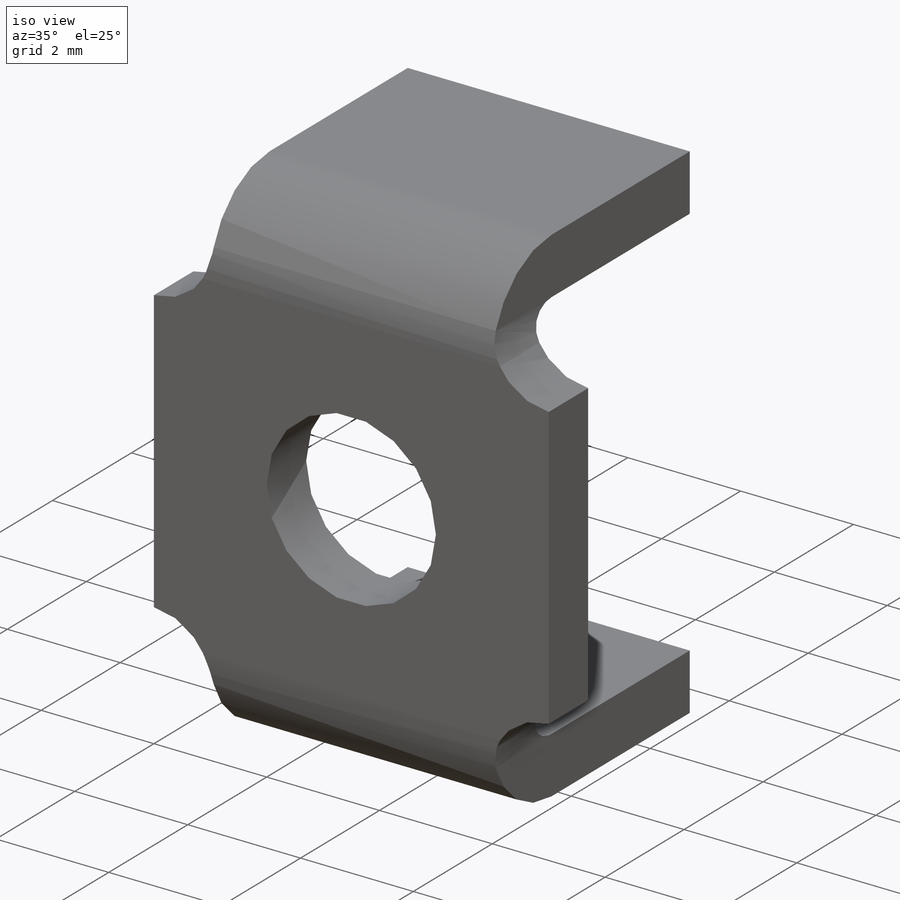
[diagram: iso view]
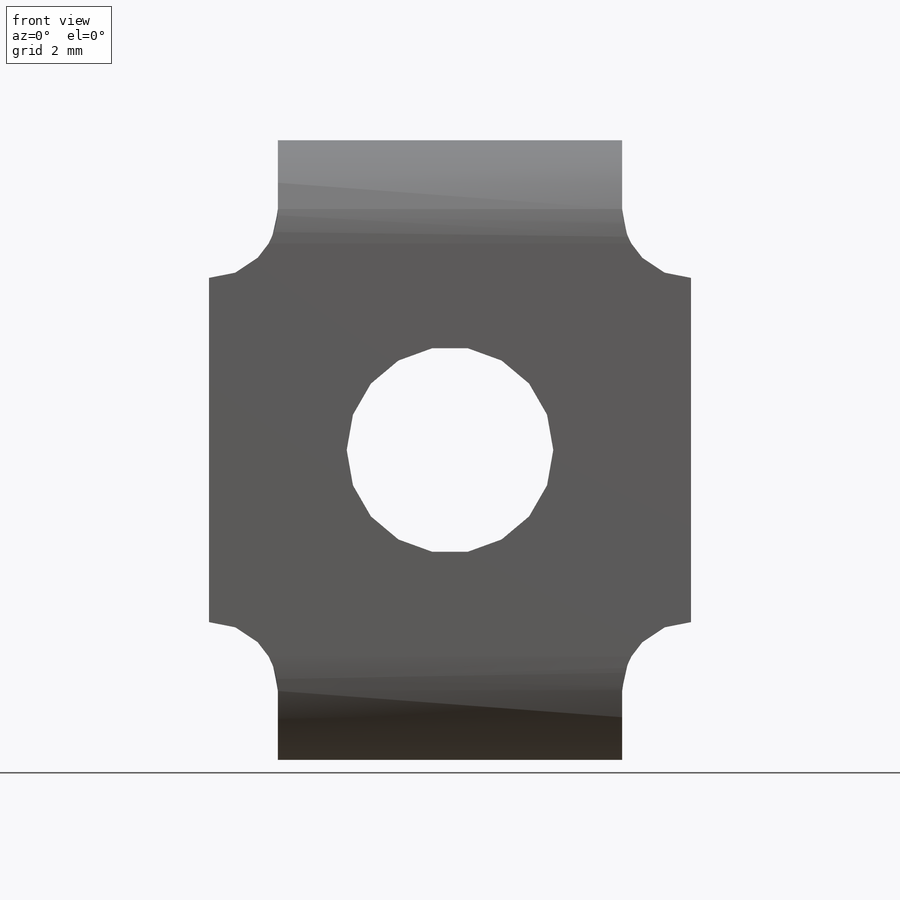
[diagram: front view]
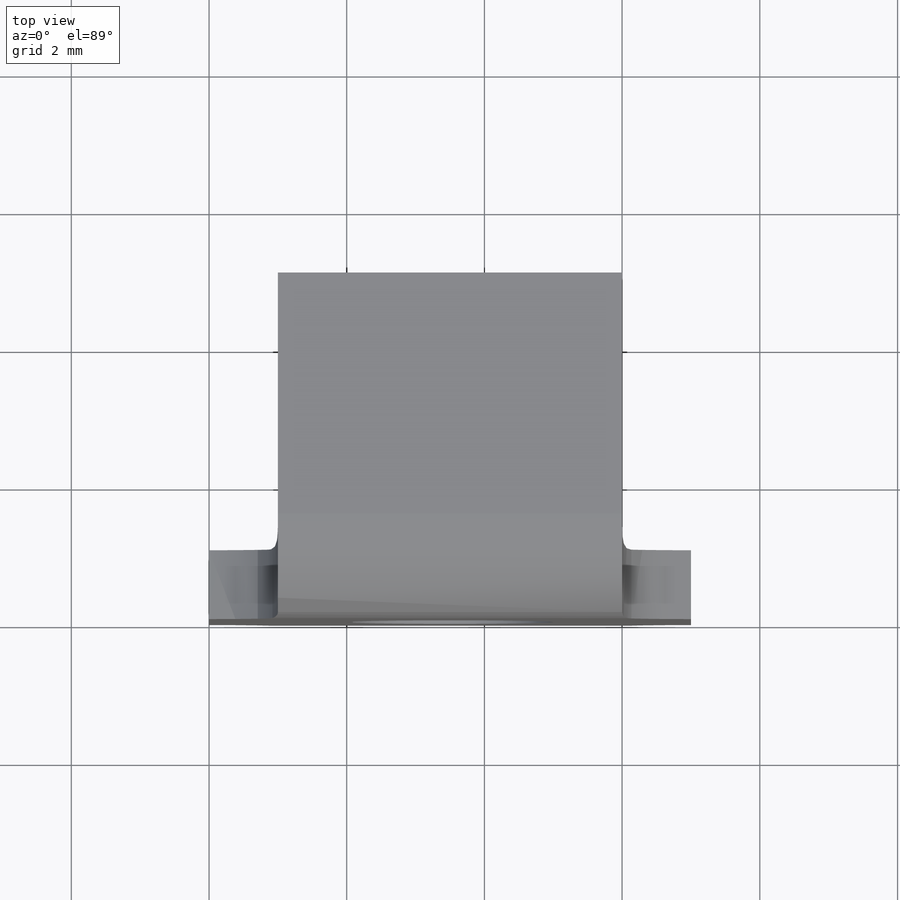
[diagram: top view]
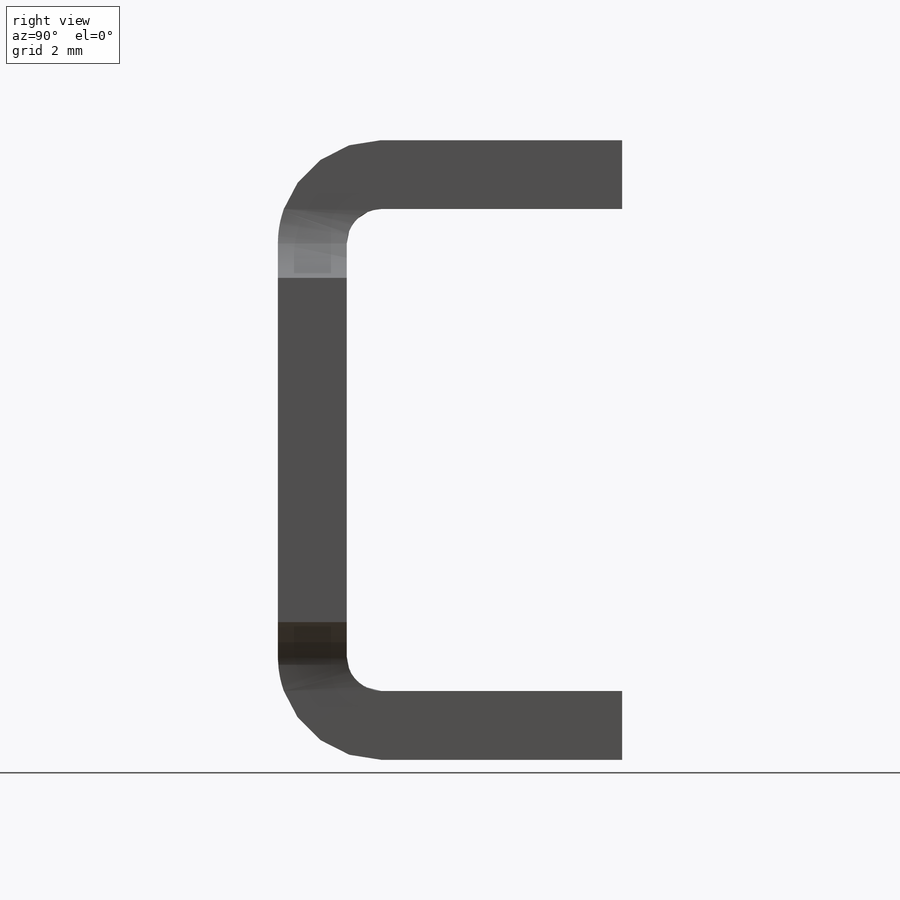
[diagram: right view]
SOLIDWORKS PART (.sldprt)
format: sldprt  version: not decoded by parser v0  size: 183,808 bytes
history: native  units: mm
features: sketch x4, sheet_metal_op x3, cut_extrude x2, material x1 + 2 further entries (+12 scaffold rows collapsed)
feature tree (24):
  scaffold x12  (default folders/planes/origin — collapsed)
  material  "Material <not specified>"
  sketch  "Sketch1"  dims[D1=5.0mm D2=9.0mm D3=5.0mm]
  sheet_metal_op  "Sheet-Metal1"
  sheet_metal_op  "Base-Flange"
  sheet_metal_op  "BaseBend2"
  sketch  "Sketch3"  dims[D1=3.0mm D2=4.5mm D3=3.5mm]
  cut_extrude  "Cut-Extrude1"  Depth=1.2mm
  sketch  "Sketch5"  dims[D1=1.0mm D2=4.5mm]
  cut_extrude  "Cut-Extrude3"  Depth=1.2mm
  "Flat-Pattern1"
  sketch  "Bend-Lines1"
  "Flatten-<BaseBend2>1"
decode coverage: 5 of 9 modeling features carry decoded parameters; 2 rows unclassified (native names shown)
note: suppression state not decoded; provenance and decode notes live in map.json
